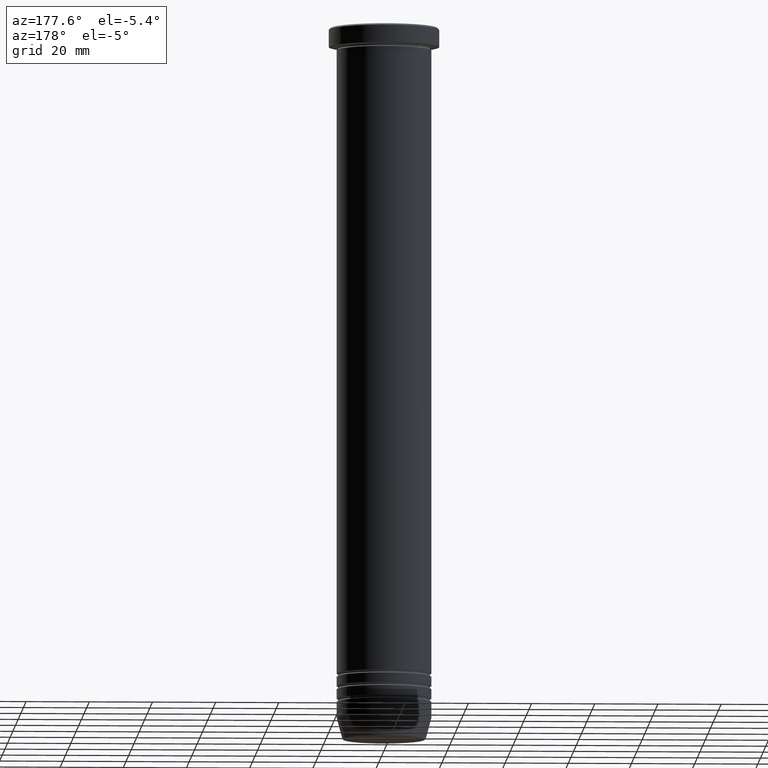
[diagram: clean part render]
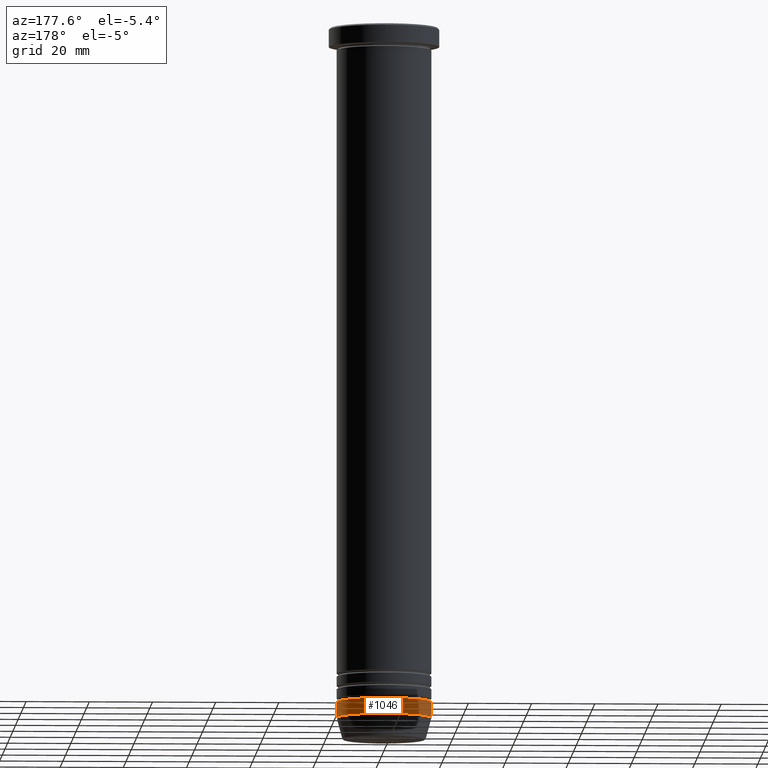
[diagram: same view with one face highlighted and labeled with its STEP entity id]
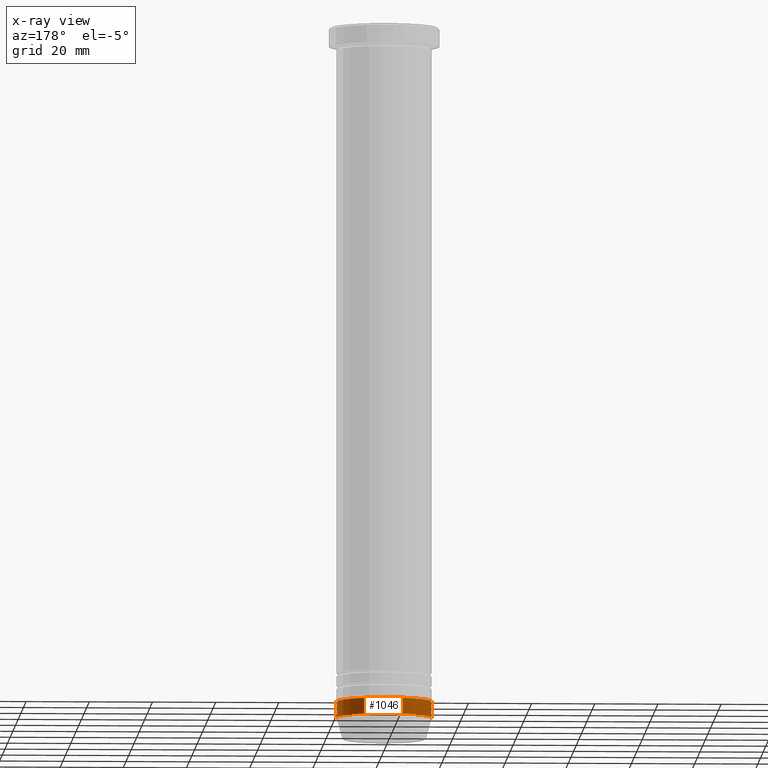
[diagram: x-ray of the same camera — body ghosted, the highlighted face saturated]
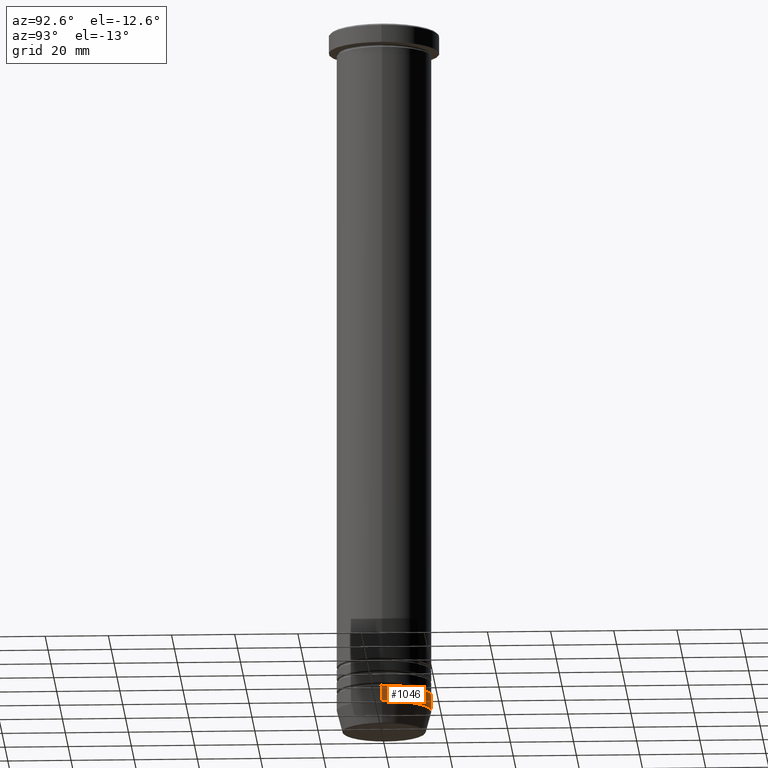
[diagram: same view with one face highlighted and labeled with its STEP entity id]
A machine part, auxiliary view. The second image highlights one B-rep face of the part: STEP entity #1046.
The next image is the same camera in x-ray: the body ghosted, the highlighted face saturated — about 0% of this face is hidden behind the body in this view.
A second angle (auxiliary view) of the same face is appended — the face is thin or edge-on in the first view.
In plain terms, the highlighted cylindrical surface (partial cylindrical patch) has radius 15 mm, axis along (-0, -0, 1).
Its self-contained STEP definition (entity closure, byte-faithful):
#45 = CYLINDRICAL_SURFACE ( 'NONE', #51, 14.99999999999999822 ) ;
#51 = AXIS2_PLACEMENT_3D ( 'NONE', #416, #764, #220 ) ;
#55 = ORIENTED_EDGE ( 'NONE', *, *, #575, .T. ) ;
#64 = CARTESIAN_POINT ( 'NONE',  ( -14.99999999999999822, 1.836970198721029589E-15, 0.000000000000000000 ) ) ;
#167 = AXIS2_PLACEMENT_3D ( 'NONE', #269, #959, #793 ) ;
#210 = CARTESIAN_POINT ( 'NONE',  ( -14.99999999999999822, 1.836970198721029589E-15, -213.9999999999999716 ) ) ;
#220 = DIRECTION ( 'NONE',  ( 1.000000000000000000, 0.000000000000000000, 0.000000000000000000 ) ) ;
#233 = EDGE_CURVE ( 'NONE', #569, #332, #526, .T. ) ;
#269 = CARTESIAN_POINT ( 'NONE',  ( 0.000000000000000000, 0.000000000000000000, -213.9999999999999716 ) ) ;
#326 = FACE_OUTER_BOUND ( 'NONE', #890, .T. ) ;
#332 = VERTEX_POINT ( 'NONE', #210 ) ;
#351 = VERTEX_POINT ( 'NONE', #818 ) ;
#352 = LINE ( 'NONE', #64, #1031 ) ;
#355 = CARTESIAN_POINT ( 'NONE',  ( 14.99999999999999822, 0.000000000000000000, 0.000000000000000000 ) ) ;
#416 = CARTESIAN_POINT ( 'NONE',  ( 0.000000000000000000, 0.000000000000000000, 0.000000000000000000 ) ) ;
#428 = VECTOR ( 'NONE', #701, 1000.000000000000000 ) ;
#447 = EDGE_CURVE ( 'NONE', #351, #332, #352, .T. ) ;
#470 = CARTESIAN_POINT ( 'NONE',  ( 14.99999999999999822, 0.000000000000000000, -218.9999999999999716 ) ) ;
#482 = VERTEX_POINT ( 'NONE', #470 ) ;
#499 = CARTESIAN_POINT ( 'NONE',  ( 14.99999999999999822, 0.000000000000000000, -213.9999999999999716 ) ) ;
#526 = CIRCLE ( 'NONE', #167, 14.99999999999999822 ) ;
#569 = VERTEX_POINT ( 'NONE', #499 ) ;
#575 = EDGE_CURVE ( 'NONE', #482, #351, #940, .T. ) ;
#701 = DIRECTION ( 'NONE',  ( -0.000000000000000000, -0.000000000000000000, 1.000000000000000000 ) ) ;
#736 = ORIENTED_EDGE ( 'NONE', *, *, #447, .T. ) ;
#764 = DIRECTION ( 'NONE',  ( -0.000000000000000000, -0.000000000000000000, 1.000000000000000000 ) ) ;
#793 = DIRECTION ( 'NONE',  ( 1.000000000000000000, 0.000000000000000000, 0.000000000000000000 ) ) ;
#818 = CARTESIAN_POINT ( 'NONE',  ( -14.99999999999999822, 1.836970198721029589E-15, -218.9999999999999716 ) ) ;
#890 = EDGE_LOOP ( 'NONE', ( #55, #736, #1020, #945 ) ) ;
#903 = EDGE_CURVE ( 'NONE', #482, #569, #971, .T. ) ;
#940 = CIRCLE ( 'NONE', #1032, 14.99999999999999822 ) ;
#945 = ORIENTED_EDGE ( 'NONE', *, *, #903, .F. ) ;
#959 = DIRECTION ( 'NONE',  ( -0.000000000000000000, -0.000000000000000000, 1.000000000000000000 ) ) ;
#971 = LINE ( 'NONE', #355, #428 ) ;
#1018 = CARTESIAN_POINT ( 'NONE',  ( 0.000000000000000000, 0.000000000000000000, -218.9999999999999716 ) ) ;
#1020 = ORIENTED_EDGE ( 'NONE', *, *, #233, .F. ) ;
#1031 = VECTOR ( 'NONE', #1050, 1000.000000000000000 ) ;
#1032 = AXIS2_PLACEMENT_3D ( 'NONE', #1018, #1113, #1138 ) ;
#1046 = ADVANCED_FACE ( 'NONE', ( #326 ), #45, .T. ) ;
#1050 = DIRECTION ( 'NONE',  ( -0.000000000000000000, -0.000000000000000000, 1.000000000000000000 ) ) ;
#1113 = DIRECTION ( 'NONE',  ( -0.000000000000000000, -0.000000000000000000, 1.000000000000000000 ) ) ;
#1138 = DIRECTION ( 'NONE',  ( 1.000000000000000000, 0.000000000000000000, 0.000000000000000000 ) ) ;